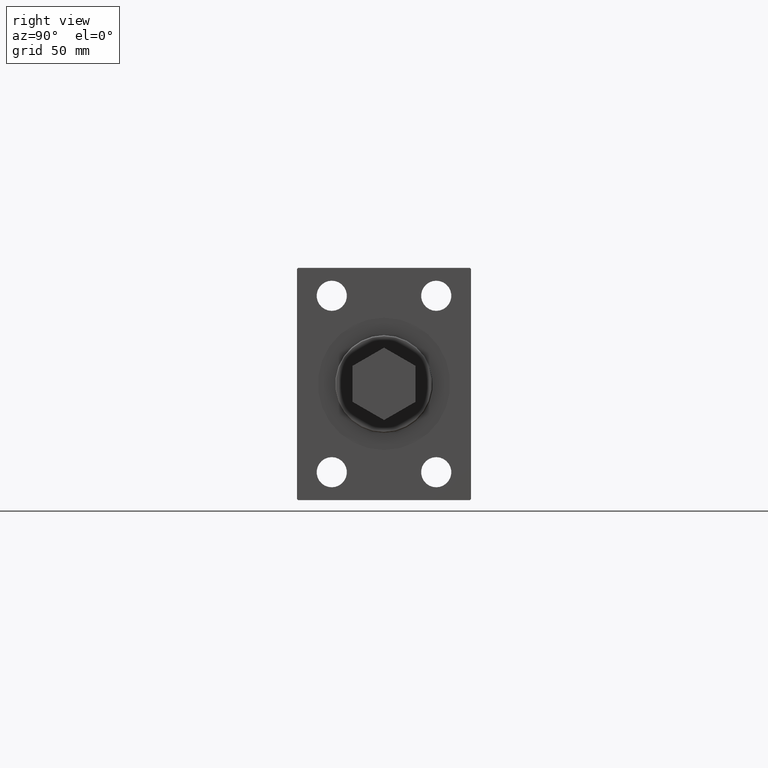
[diagram: clean part render]
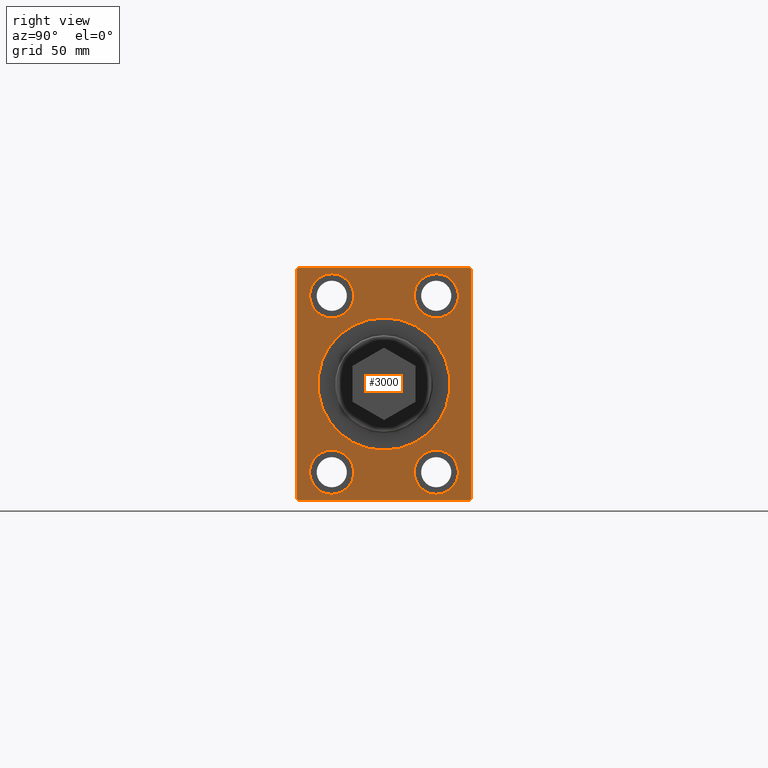
[diagram: same view with one face highlighted and labeled with its STEP entity id]
A machine part, right view. The second image highlights one B-rep face of the part: STEP entity #3000.
In plain terms, the highlighted planar face has unit normal (1, 0, 0).
Its self-contained STEP definition (entity closure, byte-faithful):
#41 = ORIENTED_EDGE ( 'NONE', *, *, #25302, .T. ) ;
#137 = ORIENTED_EDGE ( 'NONE', *, *, #30453, .T. ) ;
#171 = AXIS2_PLACEMENT_3D ( 'NONE', #19920, #12517, #45254 ) ;
#347 = VERTEX_POINT ( 'NONE', #4488 ) ;
#601 = CARTESIAN_POINT ( 'NONE',  ( 113.2000000000000028, -22.50000000000000711, 38.00000000000000000 ) ) ;
#853 = DIRECTION ( 'NONE',  ( 0.000000000000000000, -1.000000000000000000, -3.700743415417189125E-16 ) ) ;
#1299 = CARTESIAN_POINT ( 'NONE',  ( 113.2000000000000028, 37.50000000000000000, -49.50000000000000000 ) ) ;
#2149 = EDGE_LOOP ( 'NONE', ( #19666, #27070 ) ) ;
#2824 = ORIENTED_EDGE ( 'NONE', *, *, #22586, .T. ) ;
#2901 = DIRECTION ( 'NONE',  ( 0.000000000000000000, 0.000000000000000000, 1.000000000000000000 ) ) ;
#3000 = ADVANCED_FACE ( 'NONE', ( #16850, #31436, #13261, #24263, #32131, #28083 ), #18022, .T. ) ;
#3304 = DIRECTION ( 'NONE',  ( 0.000000000000000000, 0.000000000000000000, -1.000000000000000000 ) ) ;
#3837 = DIRECTION ( 'NONE',  ( 0.000000000000000000, -1.387778780781445429E-16, 1.000000000000000000 ) ) ;
#3959 = DIRECTION ( 'NONE',  ( -0.000000000000000000, -0.7071067811865474617, 0.7071067811865474617 ) ) ;
#3982 = AXIS2_PLACEMENT_3D ( 'NONE', #13222, #42839, #32094 ) ;
#4095 = ORIENTED_EDGE ( 'NONE', *, *, #20204, .T. ) ;
#4175 = VERTEX_POINT ( 'NONE', #35547 ) ;
#4261 = DIRECTION ( 'NONE',  ( -0.000000000000000000, 0.7071067811865474617, 0.7071067811865474617 ) ) ;
#4488 = CARTESIAN_POINT ( 'NONE',  ( 113.2000000000000028, 37.00000000000000000, -50.00000000000000000 ) ) ;
#4759 = CARTESIAN_POINT ( 'NONE',  ( 113.2000000000000028, -22.50000000000000711, -38.00000000000000000 ) ) ;
#4937 = ORIENTED_EDGE ( 'NONE', *, *, #23101, .T. ) ;
#5281 = VERTEX_POINT ( 'NONE', #25131 ) ;
#5722 = ORIENTED_EDGE ( 'NONE', *, *, #9696, .T. ) ;
#6120 = DIRECTION ( 'NONE',  ( 0.000000000000000000, 0.000000000000000000, -1.000000000000000000 ) ) ;
#6588 = VERTEX_POINT ( 'NONE', #30158 ) ;
#6744 = DIRECTION ( 'NONE',  ( 0.000000000000000000, 0.000000000000000000, 1.000000000000000000 ) ) ;
#6967 = CIRCLE ( 'NONE', #34465, 9.500000000000001776 ) ;
#7460 = ORIENTED_EDGE ( 'NONE', *, *, #24978, .T. ) ;
#7471 = VERTEX_POINT ( 'NONE', #9485 ) ;
#7628 = EDGE_CURVE ( 'NONE', #7471, #14564, #7945, .T. ) ;
#7945 = LINE ( 'NONE', #41159, #18518 ) ;
#8226 = VECTOR ( 'NONE', #35572, 1000.000000000000114 ) ;
#8234 = EDGE_CURVE ( 'NONE', #35670, #5281, #36588, .T. ) ;
#8443 = CARTESIAN_POINT ( 'NONE',  ( 113.2000000000000028, -22.50000000000000711, -47.50000000000000000 ) ) ;
#8603 = AXIS2_PLACEMENT_3D ( 'NONE', #12823, #38874, #6120 ) ;
#9060 = DIRECTION ( 'NONE',  ( -1.000000000000000000, -0.000000000000000000, -0.000000000000000000 ) ) ;
#9485 = CARTESIAN_POINT ( 'NONE',  ( 113.2000000000000028, -37.50000000000000000, -49.50000000000000000 ) ) ;
#9696 = EDGE_CURVE ( 'NONE', #10683, #35157, #19006, .T. ) ;
#9992 = LINE ( 'NONE', #42725, #8226 ) ;
#10146 = DIRECTION ( 'NONE',  ( 0.000000000000000000, 0.000000000000000000, -1.000000000000000000 ) ) ;
#10250 = AXIS2_PLACEMENT_3D ( 'NONE', #601, #15175, #45034 ) ;
#10617 = DIRECTION ( 'NONE',  ( 1.000000000000000000, 0.000000000000000000, 0.000000000000000000 ) ) ;
#10683 = VERTEX_POINT ( 'NONE', #42012 ) ;
#10844 = EDGE_CURVE ( 'NONE', #37969, #31113, #44593, .T. ) ;
#11259 = AXIS2_PLACEMENT_3D ( 'NONE', #19206, #12756, #23524 ) ;
#11754 = VERTEX_POINT ( 'NONE', #30541 ) ;
#11938 = ORIENTED_EDGE ( 'NONE', *, *, #40947, .F. ) ;
#12164 = CARTESIAN_POINT ( 'NONE',  ( 113.2000000000000028, 22.49999999999999289, -38.00000000000000000 ) ) ;
#12168 = DIRECTION ( 'NONE',  ( 0.000000000000000000, 0.000000000000000000, 1.000000000000000000 ) ) ;
#12274 = ORIENTED_EDGE ( 'NONE', *, *, #37123, .T. ) ;
#12517 = DIRECTION ( 'NONE',  ( -1.000000000000000000, -0.000000000000000000, -0.000000000000000000 ) ) ;
#12542 = CARTESIAN_POINT ( 'NONE',  ( 113.2000000000000028, -22.50000000000000711, 47.50000000000000000 ) ) ;
#12756 = DIRECTION ( 'NONE',  ( -1.000000000000000000, -0.000000000000000000, -0.000000000000000000 ) ) ;
#12823 = CARTESIAN_POINT ( 'NONE',  ( 113.2000000000000028, 0.000000000000000000, 0.000000000000000000 ) ) ;
#12864 = ORIENTED_EDGE ( 'NONE', *, *, #40130, .T. ) ;
#12976 = ORIENTED_EDGE ( 'NONE', *, *, #21571, .T. ) ;
#13006 = CARTESIAN_POINT ( 'NONE',  ( 113.2000000000000028, 3.490243377569956456E-15, 28.50000000000000000 ) ) ;
#13222 = CARTESIAN_POINT ( 'NONE',  ( 113.2000000000000028, 22.49999999999999289, 38.00000000000000000 ) ) ;
#13261 = FACE_BOUND ( 'NONE', #2149, .T. ) ;
#13721 = LINE ( 'NONE', #18248, #16586 ) ;
#13909 = CARTESIAN_POINT ( 'NONE',  ( 113.2000000000000028, 22.49999999999999289, -38.00000000000000000 ) ) ;
#14564 = VERTEX_POINT ( 'NONE', #25045 ) ;
#15175 = DIRECTION ( 'NONE',  ( -1.000000000000000000, -0.000000000000000000, -0.000000000000000000 ) ) ;
#15247 = LINE ( 'NONE', #34132, #24237 ) ;
#15284 = CIRCLE ( 'NONE', #16802, 9.500000000000001776 ) ;
#15588 = DIRECTION ( 'NONE',  ( -0.000000000000000000, 0.7071067811865474617, -0.7071067811865474617 ) ) ;
#16586 = VECTOR ( 'NONE', #43356, 1000.000000000000000 ) ;
#16722 = ORIENTED_EDGE ( 'NONE', *, *, #7628, .T. ) ;
#16802 = AXIS2_PLACEMENT_3D ( 'NONE', #4759, #44902, #12168 ) ;
#16850 = FACE_BOUND ( 'NONE', #23407, .T. ) ;
#17167 = EDGE_LOOP ( 'NONE', ( #12274, #137 ) ) ;
#18022 = PLANE ( 'NONE',  #37480 ) ;
#18247 = CARTESIAN_POINT ( 'NONE',  ( 113.2000000000000028, 0.000000000000000000, 0.000000000000000000 ) ) ;
#18248 = CARTESIAN_POINT ( 'NONE',  ( 113.2000000000000028, -37.50000000000000000, -50.00000000000001421 ) ) ;
#18518 = VECTOR ( 'NONE', #15588, 1000.000000000000114 ) ;
#19006 = LINE ( 'NONE', #33838, #29323 ) ;
#19206 = CARTESIAN_POINT ( 'NONE',  ( 113.2000000000000028, 22.49999999999999289, 38.00000000000000000 ) ) ;
#19666 = ORIENTED_EDGE ( 'NONE', *, *, #39291, .T. ) ;
#19920 = CARTESIAN_POINT ( 'NONE',  ( 113.2000000000000028, -22.50000000000000711, 38.00000000000000000 ) ) ;
#20204 = EDGE_CURVE ( 'NONE', #5281, #10683, #26440, .T. ) ;
#20458 = EDGE_LOOP ( 'NONE', ( #36377, #11938 ) ) ;
#20823 = CARTESIAN_POINT ( 'NONE',  ( 113.2000000000000028, -22.50000000000000711, -38.00000000000000000 ) ) ;
#21111 = VERTEX_POINT ( 'NONE', #46341 ) ;
#21416 = ORIENTED_EDGE ( 'NONE', *, *, #22506, .T. ) ;
#21571 = EDGE_CURVE ( 'NONE', #24162, #11754, #37200, .T. ) ;
#22071 = EDGE_CURVE ( 'NONE', #4175, #27339, #24990, .T. ) ;
#22506 = EDGE_CURVE ( 'NONE', #11754, #24162, #27347, .T. ) ;
#22586 = EDGE_CURVE ( 'NONE', #35157, #37021, #9992, .T. ) ;
#22809 = LINE ( 'NONE', #23299, #41836 ) ;
#23101 = EDGE_CURVE ( 'NONE', #37021, #7471, #22809, .T. ) ;
#23299 = CARTESIAN_POINT ( 'NONE',  ( 113.2000000000000028, -37.50000000000000000, 49.99999999999998579 ) ) ;
#23407 = EDGE_LOOP ( 'NONE', ( #21416, #12976 ) ) ;
#23524 = DIRECTION ( 'NONE',  ( 0.000000000000000000, 0.000000000000000000, 1.000000000000000000 ) ) ;
#23776 = CARTESIAN_POINT ( 'NONE',  ( 113.2000000000000028, -37.00000000000000000, 49.99999999999998579 ) ) ;
#24162 = VERTEX_POINT ( 'NONE', #28949 ) ;
#24237 = VECTOR ( 'NONE', #4261, 1000.000000000000114 ) ;
#24263 = FACE_BOUND ( 'NONE', #37570, .T. ) ;
#24608 = CIRCLE ( 'NONE', #3982, 9.500000000000001776 ) ;
#24978 = EDGE_CURVE ( 'NONE', #14564, #347, #13721, .T. ) ;
#24990 = CIRCLE ( 'NONE', #11259, 9.500000000000001776 ) ;
#25045 = CARTESIAN_POINT ( 'NONE',  ( 113.2000000000000028, -36.99999999999998579, -50.00000000000001421 ) ) ;
#25131 = CARTESIAN_POINT ( 'NONE',  ( 113.2000000000000028, 37.49999999999998579, 49.50000000000001421 ) ) ;
#25302 = EDGE_CURVE ( 'NONE', #347, #35670, #15247, .T. ) ;
#26023 = VERTEX_POINT ( 'NONE', #8443 ) ;
#26440 = LINE ( 'NONE', #41469, #45514 ) ;
#27070 = ORIENTED_EDGE ( 'NONE', *, *, #22071, .T. ) ;
#27339 = VERTEX_POINT ( 'NONE', #43483 ) ;
#27347 = CIRCLE ( 'NONE', #40298, 9.500000000000001776 ) ;
#28083 = FACE_OUTER_BOUND ( 'NONE', #28343, .T. ) ;
#28298 = AXIS2_PLACEMENT_3D ( 'NONE', #47023, #36047, #3304 ) ;
#28343 = EDGE_LOOP ( 'NONE', ( #5722, #2824, #4937, #16722, #7460, #41, #45180, #4095 ) ) ;
#28949 = CARTESIAN_POINT ( 'NONE',  ( 113.2000000000000028, 22.49999999999999289, -47.50000000000000000 ) ) ;
#29323 = VECTOR ( 'NONE', #853, 1000.000000000000000 ) ;
#30158 = CARTESIAN_POINT ( 'NONE',  ( 113.2000000000000028, 0.000000000000000000, -28.50000000000000000 ) ) ;
#30222 = DIRECTION ( 'NONE',  ( 0.000000000000000000, 0.000000000000000000, -1.000000000000000000 ) ) ;
#30453 = EDGE_CURVE ( 'NONE', #26023, #21111, #15284, .T. ) ;
#30541 = CARTESIAN_POINT ( 'NONE',  ( 113.2000000000000028, 22.49999999999999289, -28.49999999999999645 ) ) ;
#30887 = CARTESIAN_POINT ( 'NONE',  ( 113.2000000000000028, -37.50000000000000000, 49.49999999999998579 ) ) ;
#31113 = VERTEX_POINT ( 'NONE', #34227 ) ;
#31436 = FACE_BOUND ( 'NONE', #17167, .T. ) ;
#32094 = DIRECTION ( 'NONE',  ( 0.000000000000000000, 0.000000000000000000, 1.000000000000000000 ) ) ;
#32131 = FACE_BOUND ( 'NONE', #20458, .T. ) ;
#32789 = DIRECTION ( 'NONE',  ( -1.000000000000000000, -0.000000000000000000, -0.000000000000000000 ) ) ;
#33000 = CARTESIAN_POINT ( 'NONE',  ( 113.2000000000000028, 37.50000000000000000, -50.00000000000000000 ) ) ;
#33838 = CARTESIAN_POINT ( 'NONE',  ( 113.2000000000000028, 37.49999999999998579, 50.00000000000001421 ) ) ;
#34132 = CARTESIAN_POINT ( 'NONE',  ( 113.2000000000000028, 43.50000000000000711, -43.50000000000000711 ) ) ;
#34227 = CARTESIAN_POINT ( 'NONE',  ( 113.2000000000000028, -22.50000000000000711, 28.49999999999999645 ) ) ;
#34465 = AXIS2_PLACEMENT_3D ( 'NONE', #20823, #35642, #2901 ) ;
#34662 = EDGE_CURVE ( 'NONE', #6588, #35164, #43533, .T. ) ;
#35157 = VERTEX_POINT ( 'NONE', #23776 ) ;
#35164 = VERTEX_POINT ( 'NONE', #13006 ) ;
#35322 = CIRCLE ( 'NONE', #8603, 28.50000000000000000 ) ;
#35547 = CARTESIAN_POINT ( 'NONE',  ( 113.2000000000000028, 22.49999999999999289, 28.49999999999999645 ) ) ;
#35572 = DIRECTION ( 'NONE',  ( 0.000000000000000000, -0.7071067811865474617, -0.7071067811865474617 ) ) ;
#35642 = DIRECTION ( 'NONE',  ( -1.000000000000000000, -0.000000000000000000, -0.000000000000000000 ) ) ;
#35670 = VERTEX_POINT ( 'NONE', #1299 ) ;
#36047 = DIRECTION ( 'NONE',  ( 1.000000000000000000, 0.000000000000000000, 0.000000000000000000 ) ) ;
#36377 = ORIENTED_EDGE ( 'NONE', *, *, #34662, .F. ) ;
#36588 = LINE ( 'NONE', #33000, #44522 ) ;
#37021 = VERTEX_POINT ( 'NONE', #30887 ) ;
#37123 = EDGE_CURVE ( 'NONE', #21111, #26023, #6967, .T. ) ;
#37200 = CIRCLE ( 'NONE', #38739, 9.500000000000001776 ) ;
#37480 = AXIS2_PLACEMENT_3D ( 'NONE', #18247, #10617, #10146 ) ;
#37570 = EDGE_LOOP ( 'NONE', ( #39089, #12864 ) ) ;
#37746 = DIRECTION ( 'NONE',  ( 0.000000000000000000, 0.000000000000000000, 1.000000000000000000 ) ) ;
#37969 = VERTEX_POINT ( 'NONE', #12542 ) ;
#38739 = AXIS2_PLACEMENT_3D ( 'NONE', #13909, #32789, #6744 ) ;
#38874 = DIRECTION ( 'NONE',  ( 1.000000000000000000, 0.000000000000000000, 0.000000000000000000 ) ) ;
#39089 = ORIENTED_EDGE ( 'NONE', *, *, #10844, .T. ) ;
#39099 = CIRCLE ( 'NONE', #171, 9.500000000000001776 ) ;
#39291 = EDGE_CURVE ( 'NONE', #27339, #4175, #24608, .T. ) ;
#40130 = EDGE_CURVE ( 'NONE', #31113, #37969, #39099, .T. ) ;
#40298 = AXIS2_PLACEMENT_3D ( 'NONE', #12164, #9060, #37746 ) ;
#40947 = EDGE_CURVE ( 'NONE', #35164, #6588, #35322, .T. ) ;
#41159 = CARTESIAN_POINT ( 'NONE',  ( 113.2000000000000028, -43.50000000000000000, -43.50000000000000000 ) ) ;
#41469 = CARTESIAN_POINT ( 'NONE',  ( 113.2000000000000028, 43.50000000000000000, 43.50000000000000000 ) ) ;
#41836 = VECTOR ( 'NONE', #30222, 1000.000000000000000 ) ;
#42012 = CARTESIAN_POINT ( 'NONE',  ( 113.2000000000000028, 36.99999999999998579, 50.00000000000001421 ) ) ;
#42725 = CARTESIAN_POINT ( 'NONE',  ( 113.2000000000000028, -43.49999999999999289, 43.49999999999999289 ) ) ;
#42839 = DIRECTION ( 'NONE',  ( -1.000000000000000000, -0.000000000000000000, -0.000000000000000000 ) ) ;
#43356 = DIRECTION ( 'NONE',  ( 0.000000000000000000, 1.000000000000000000, 1.850371707708594316E-16 ) ) ;
#43483 = CARTESIAN_POINT ( 'NONE',  ( 113.2000000000000028, 22.49999999999999289, 47.50000000000000000 ) ) ;
#43533 = CIRCLE ( 'NONE', #28298, 28.50000000000000000 ) ;
#44522 = VECTOR ( 'NONE', #3837, 1000.000000000000000 ) ;
#44593 = CIRCLE ( 'NONE', #10250, 9.500000000000001776 ) ;
#44902 = DIRECTION ( 'NONE',  ( -1.000000000000000000, -0.000000000000000000, -0.000000000000000000 ) ) ;
#45034 = DIRECTION ( 'NONE',  ( 0.000000000000000000, 0.000000000000000000, 1.000000000000000000 ) ) ;
#45180 = ORIENTED_EDGE ( 'NONE', *, *, #8234, .T. ) ;
#45254 = DIRECTION ( 'NONE',  ( 0.000000000000000000, 0.000000000000000000, 1.000000000000000000 ) ) ;
#45514 = VECTOR ( 'NONE', #3959, 1000.000000000000114 ) ;
#46341 = CARTESIAN_POINT ( 'NONE',  ( 113.2000000000000028, -22.50000000000000711, -28.49999999999999645 ) ) ;
#47023 = CARTESIAN_POINT ( 'NONE',  ( 113.2000000000000028, 0.000000000000000000, 0.000000000000000000 ) ) ;